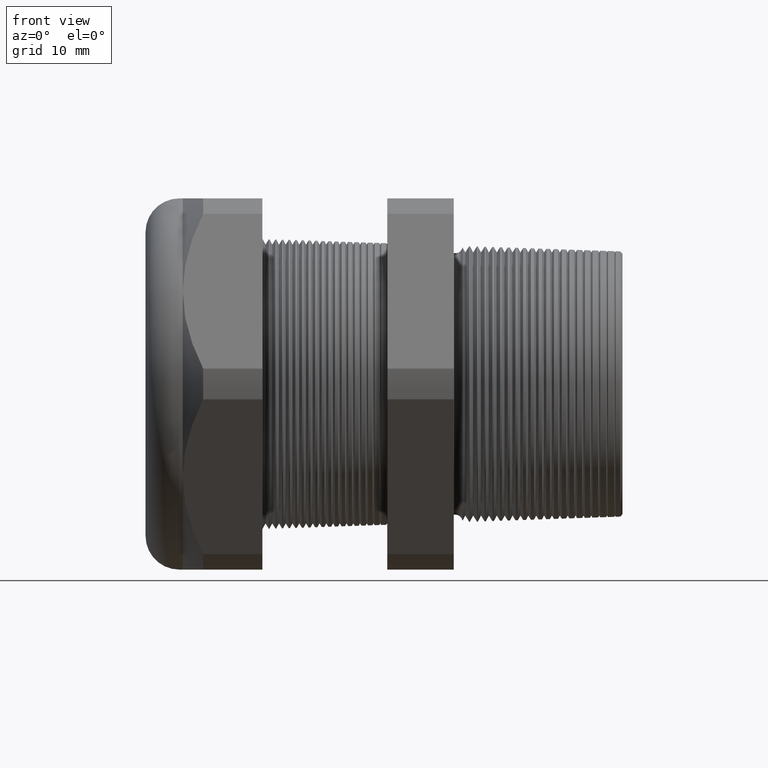
[diagram: clean part render]
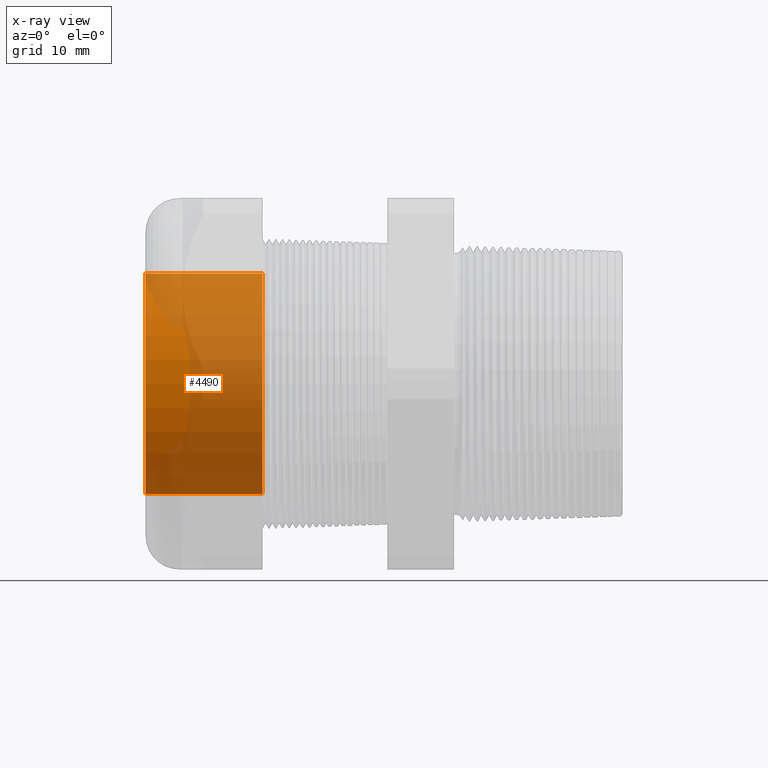
[diagram: x-ray — body ghosted, one internal face saturated and labeled with its STEP entity id]
A machine part, front view, then the same camera in x-ray: the body is ghosted and one INTERNAL B-rep face — a face not visible from any outside direction — is saturated and labeled: STEP entity #4490.
In plain terms, the highlighted cylindrical surface (partial cylindrical patch) has radius 12.446 mm, axis along (1, 0, 0).
Its self-contained STEP definition (entity closure, byte-faithful):
#4418 = VERTEX_POINT ( 'NONE', #6719 ) ;
#4419 = EDGE_CURVE ( 'NONE', #4418, #4434, #6718, .T. ) ;
#4434 = VERTEX_POINT ( 'NONE', #6754 ) ;
#4443 = ORIENTED_EDGE ( 'NONE', *, *, #4419, .T. ) ;
#4444 = ORIENTED_EDGE ( 'NONE', *, *, #4471, .F. ) ;
#4461 = ORIENTED_EDGE ( 'NONE', *, *, #4485, .F. ) ;
#4471 = EDGE_CURVE ( 'NONE', #4478, #4434, #6820, .T. ) ;
#4474 = EDGE_LOOP ( 'NONE', ( #4461, #4481, #4443, #4444 ) ) ;
#4478 = VERTEX_POINT ( 'NONE', #6812 ) ;
#4480 = EDGE_CURVE ( 'NONE', #4482, #4418, #6807, .T. ) ;
#4481 = ORIENTED_EDGE ( 'NONE', *, *, #4480, .T. ) ;
#4482 = VERTEX_POINT ( 'NONE', #6803 ) ;
#4485 = EDGE_CURVE ( 'NONE', #4482, #4478, #6801, .T. ) ;
#4490 = ADVANCED_FACE ( 'NONE', ( #6796 ), #6795, .F. ) ;
#6714 = DIRECTION ( 'NONE',  ( 0.0000000000000000000, 0.0000000000000000000, -1.000000000000000000 ) ) ;
#6715 = DIRECTION ( 'NONE',  ( 1.000000000000000000, 0.0000000000000000000, 0.0000000000000000000 ) ) ;
#6716 = CARTESIAN_POINT ( 'NONE',  ( -1.160314960629921200, 0.0000000000000000000, 0.0000000000000000000 ) ) ;
#6717 = AXIS2_PLACEMENT_3D ( 'NONE', #6716, #6715, #6714 ) ;
#6718 = CIRCLE ( 'NONE', #6717, 0.4899999999999999900 ) ;
#6719 = CARTESIAN_POINT ( 'NONE',  ( -1.160314960629921200, 6.000769315822029800E-017, 0.4899999999999999900 ) ) ;
#6754 = CARTESIAN_POINT ( 'NONE',  ( -1.160314960629921200, 0.0000000000000000000, -0.4899999999999999900 ) ) ;
#6790 = DIRECTION ( 'NONE',  ( 0.0000000000000000000, 0.0000000000000000000, -1.000000000000000000 ) ) ;
#6791 = DIRECTION ( 'NONE',  ( 1.000000000000000000, 0.0000000000000000000, 0.0000000000000000000 ) ) ;
#6792 = CARTESIAN_POINT ( 'NONE',  ( 0.0000000000000000000, 0.0000000000000000000, 0.0000000000000000000 ) ) ;
#6793 = AXIS2_PLACEMENT_3D ( 'NONE', #6792, #6791, #6790 ) ;
#6795 = CYLINDRICAL_SURFACE ( 'NONE', #6793, 0.4899999999999999900 ) ;
#6796 = FACE_OUTER_BOUND ( 'NONE', #4474, .T. ) ;
#6797 = DIRECTION ( 'NONE',  ( 0.0000000000000000000, 0.0000000000000000000, -1.000000000000000000 ) ) ;
#6798 = DIRECTION ( 'NONE',  ( 1.000000000000000000, 0.0000000000000000000, 0.0000000000000000000 ) ) ;
#6799 = CARTESIAN_POINT ( 'NONE',  ( -1.680000000000000200, 0.0000000000000000000, 0.0000000000000000000 ) ) ;
#6800 = AXIS2_PLACEMENT_3D ( 'NONE', #6799, #6798, #6797 ) ;
#6801 = CIRCLE ( 'NONE', #6800, 0.4899999999999999900 ) ;
#6803 = CARTESIAN_POINT ( 'NONE',  ( -1.680000000000000200, 6.000769315822029800E-017, 0.4899999999999999900 ) ) ;
#6804 = DIRECTION ( 'NONE',  ( 1.000000000000000000, 0.0000000000000000000, 0.0000000000000000000 ) ) ;
#6805 = VECTOR ( 'NONE', #6804, 39.37007874015748100 ) ;
#6806 = CARTESIAN_POINT ( 'NONE',  ( 0.0000000000000000000, 6.000769315822029800E-017, 0.4899999999999999900 ) ) ;
#6807 = LINE ( 'NONE', #6806, #6805 ) ;
#6812 = CARTESIAN_POINT ( 'NONE',  ( -1.680000000000000200, 0.0000000000000000000, -0.4899999999999999900 ) ) ;
#6817 = DIRECTION ( 'NONE',  ( 1.000000000000000000, 0.0000000000000000000, 0.0000000000000000000 ) ) ;
#6818 = VECTOR ( 'NONE', #6817, 39.37007874015748100 ) ;
#6819 = CARTESIAN_POINT ( 'NONE',  ( 0.0000000000000000000, 0.0000000000000000000, -0.4899999999999999900 ) ) ;
#6820 = LINE ( 'NONE', #6819, #6818 ) ;